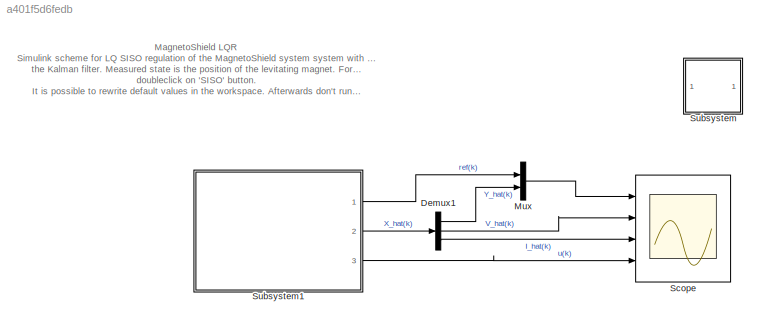
MODEL slx_a401f5d6fedb
KIND model
CONFIG AbsTol = auto
CONFIG EnableMultiTasking = on
CONFIG FixedStep = auto
CONFIG MaxStep = auto
CONFIG MinStep = auto
CONFIG RelTol = 1e-3
CONFIG SampleTimeConstraint = Unconstrained
CONFIG Solver = FixedStepAuto
CONFIG SolverName = FixedStepAuto
CONFIG StartTime = 0.0
CONFIG StopTime = 20
BLOCK [Demux] Demux1
  DisplayOption = bar
  Outputs = 3
  Ports = [1, 3]
BLOCK [Mux] Mux
  DisplayOption = bar
  Inputs = 2
  Ports = [2, 1]
BLOCK [Scope] Scope
  Floating = off
  NumInputPorts = 4
  Ports = [4]
  ScopeSpecificationString = Simulink.scopes.TimeScopeBlockCfg('CurrentConfiguration', extmgr.ConfigurationSet(extmgr.Configuration('Core','General UI',true),extmgr.Configuration('Core','Source UI',true),extmgr.Configuration('Sources','WiredSimulink',true,'DataLoggingVariableName','ScopeData1','DataLoggingSaveFormat','StructureWithTime'),extmgr.Configuration('Visuals','Time Domain',true,'SerializedDisplays',{struct('MinYLimRe...<+3779ch>
BLOCK [SubSystem] Subsystem
  OpenFcn = clear;close all;clc;\ncd(fileparts(which(gcs)));\nload '../../../../matlab/examples/MagnetoShield/MagnetoShield_Models_Greybox_SS';\n%% MagnetoShield - LQR simulation and control initialization for Simulink\n\norder = 'SISO';                 % SISO - position / SIMO - position & current\nTs = 0.0025;                    % Sampling of the Simulink simulation\n\n% Matrices extraction from model\nmodeld=c2d(mo...<+1246ch>
  Ports = []
  RequestExecContextInheritance = off
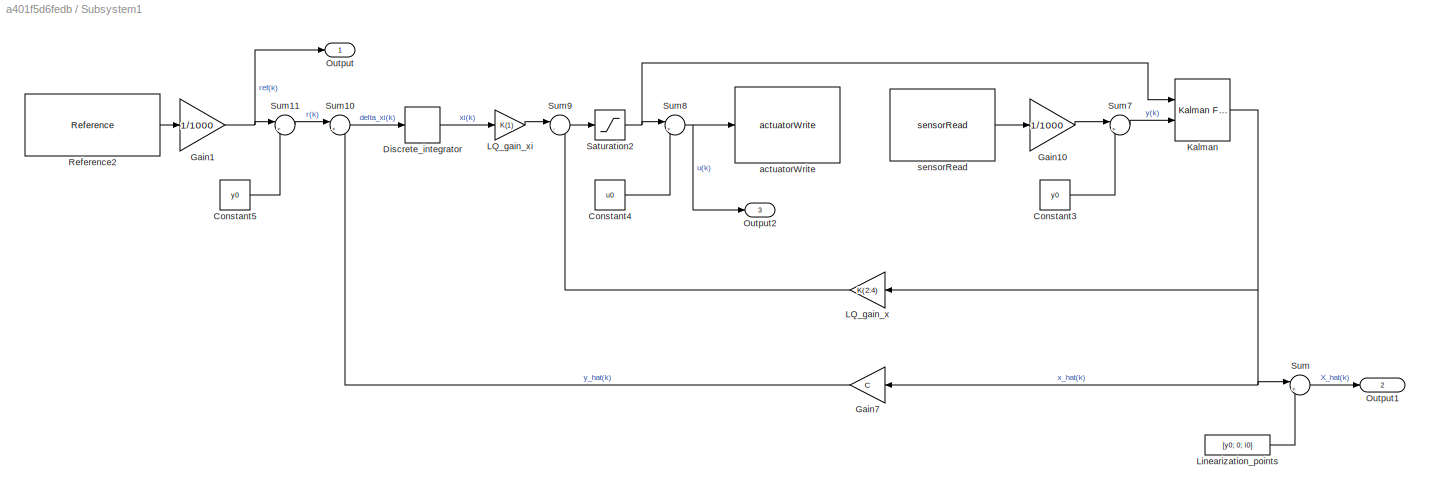
BLOCK [SubSystem] Subsystem1
  Ports = [0, 3]
  RequestExecContextInheritance = off
BLOCK [Constant] Subsystem1/Constant3
  Value = y0
BLOCK [Constant] Subsystem1/Constant4
  SampleTime = Ts
  Value = u0
BLOCK [Constant] Subsystem1/Constant5
  Value = y0
BLOCK [DiscreteIntegrator] Subsystem1/Discrete_integrator
  ICPrevOutput = DiscIntNeverNeededParam
  ICPrevScaledInput = DiscIntNeverNeededParam
  InitialConditionSetting = Auto
  IntegratorMethod = Accumulation: Forward Euler
  LimitOutput = on
  LowerSaturationLimit = -1
  Ports = [1, 1]
  SampleTime = Ts
  UpperSaturationLimit = 1
BLOCK [Gain] Subsystem1/Gain1
  Gain = 1/1000
  OutDataTypeStr = Inherit: Inherit via internal rule
  ParamDataTypeStr = Inherit: Inherit via internal rule
  SaturateOnIntegerOverflow = off
BLOCK [Gain] Subsystem1/Gain10
  Gain = 1/1000
  OutDataTypeStr = Inherit: Inherit via internal rule
  ParamDataTypeStr = Inherit: Inherit via internal rule
  SaturateOnIntegerOverflow = off
BLOCK [Gain] Subsystem1/Gain7
  Gain = C
  Multiplication = Matrix(K*u)
  OutDataTypeStr = Inherit: Inherit via internal rule
  ParamDataTypeStr = Inherit: Inherit via internal rule
  SaturateOnIntegerOverflow = off
BLOCK [Reference] Subsystem1/Kalman  REF=ctrlSharedLib/Kalman Filter
  Ports = [2, 1]
  SourceBlock = ctrlSharedLib/Kalman Filter
  SourceProductBaseCode = CT,ID
  SourceType = ctrlKalmanFilter
BLOCK [Gain] Subsystem1/LQ_gain_x
  Gain = K(2:4)
  Multiplication = Matrix(K*u)
  OutDataTypeStr = Inherit: Inherit via internal rule
  ParamDataTypeStr = Inherit: Inherit via internal rule
  SaturateOnIntegerOverflow = off
BLOCK [Gain] Subsystem1/LQ_gain_xi
  Gain = K(1)
  Multiplication = Matrix(K*u)
  OutDataTypeStr = Inherit: Inherit via internal rule
  ParamDataTypeStr = Inherit: Inherit via internal rule
  SaturateOnIntegerOverflow = off
BLOCK [Constant] Subsystem1/Linearization_points
  Value = [y0; 0; i0]
BLOCK [Outport] Subsystem1/Output
  IconDisplay = Signal name
BLOCK [Outport] Subsystem1/Output1
  IconDisplay = Signal name
  Port = 2
BLOCK [Outport] Subsystem1/Output2
  IconDisplay = Signal name
  Port = 3
BLOCK [Reference] Subsystem1/Reference2  REF=CommonBlocks/Reference
  Ports = [0, 1]
  SourceBlock = CommonBlocks/Reference
  SourceProductName = AutomationShield
BLOCK [Saturate] Subsystem1/Saturation2
  InputPortMap = u0
  LowerLimit = 0-u0
  Ports = [1, 1]
  UpperLimit = 10-u0
BLOCK [Sum] Subsystem1/Sum
  IconShape = round
  InputSameDT = off
  Inputs = |++
  OutDataTypeStr = Inherit: Inherit via internal rule
  Ports = [2, 1]
  SaturateOnIntegerOverflow = off
BLOCK [Sum] Subsystem1/Sum10
  IconShape = round
  InputSameDT = off
  Inputs = |+-
  OutDataTypeStr = Inherit: Inherit via internal rule
  Ports = [2, 1]
  SaturateOnIntegerOverflow = off
BLOCK [Sum] Subsystem1/Sum11
  IconShape = round
  InputSameDT = off
  Inputs = |+-
  OutDataTypeStr = Inherit: Inherit via internal rule
  Ports = [2, 1]
  SaturateOnIntegerOverflow = off
BLOCK [Sum] Subsystem1/Sum7
  IconShape = round
  InputSameDT = off
  Inputs = |+-
  OutDataTypeStr = Inherit: Inherit via internal rule
  Ports = [2, 1]
  SaturateOnIntegerOverflow = off
BLOCK [Sum] Subsystem1/Sum8
  IconShape = round
  InputSameDT = off
  Inputs = |++
  OutDataTypeStr = Inherit: Inherit via internal rule
  Ports = [2, 1]
  SaturateOnIntegerOverflow = off
BLOCK [Sum] Subsystem1/Sum9
  IconShape = round
  InputSameDT = off
  Inputs = |--
  OutDataTypeStr = Inherit: Inherit via internal rule
  Ports = [2, 1]
  SaturateOnIntegerOverflow = off
BLOCK [Reference] Subsystem1/actuatorWrite  REF=MagnetoLibrary/actuatorWrite
  Ports = [1]
  SourceBlock = MagnetoLibrary/actuatorWrite
  SourceProductName = AutomationShield
BLOCK [Reference] Subsystem1/sensorRead  REF=MagnetoLibrary/sensorRead
  Ports = [0, 1]
  SourceBlock = MagnetoLibrary/sensorRead
  SourceProductName = AutomationShield
ANNOTATION (root): MagnetoShield LQR Simulink scheme for LQ SISO regulation of the MagnetoShield system system with the use of the Kalman filter. Measured state is the position of the levitating magnet. For initialization make doubleclick on 'SISO' button. It is possible to rewrite default values in the workspace. Afterwards don't run SISO initialization again.
LINE Demux1:1 -> Mux:2
LINE Demux1:2 -> Scope:2
LINE Demux1:3 -> Scope:3
LINE Mux:1 -> Scope:1
LINE Subsystem1/Constant3:1 -> Subsystem1/Sum7:2
LINE Subsystem1/Constant4:1 -> Subsystem1/Sum8:2
LINE Subsystem1/Constant5:1 -> Subsystem1/Sum11:2
LINE Subsystem1/Discrete_integrator:1 -> Subsystem1/LQ_gain_xi:1
LINE Subsystem1/Gain10:1 -> Subsystem1/Sum7:1
NET Subsystem1/Gain1:1 -> Subsystem1/Output:1, Subsystem1/Sum11:1
LINE Subsystem1/Gain7:1 -> Subsystem1/Sum10:2
NET Subsystem1/Kalman:1 -> Subsystem1/Gain7:1, Subsystem1/LQ_gain_x:1, Subsystem1/Sum:1
LINE Subsystem1/LQ_gain_x:1 -> Subsystem1/Sum9:2
LINE Subsystem1/LQ_gain_xi:1 -> Subsystem1/Sum9:1
LINE Subsystem1/Linearization_points:1 -> Subsystem1/Sum:2
LINE Subsystem1/Reference2:1 -> Subsystem1/Gain1:1
NET Subsystem1/Saturation2:1 -> Subsystem1/Kalman:1, Subsystem1/Sum8:1
LINE Subsystem1/Sum10:1 -> Subsystem1/Discrete_integrator:1
LINE Subsystem1/Sum11:1 -> Subsystem1/Sum10:1
LINE Subsystem1/Sum7:1 -> Subsystem1/Kalman:2
NET Subsystem1/Sum8:1 -> Subsystem1/Output2:1, Subsystem1/actuatorWrite:1
LINE Subsystem1/Sum9:1 -> Subsystem1/Saturation2:1
LINE Subsystem1/Sum:1 -> Subsystem1/Output1:1
LINE Subsystem1/sensorRead:1 -> Subsystem1/Gain10:1
LINE Subsystem1:1 -> Mux:1
LINE Subsystem1:2 -> Demux1:1
LINE Subsystem1:3 -> Scope:4
note: NET lines group one-source signal fan-out (src -> all destinations, sorted); 1:1 wires keep LINE
